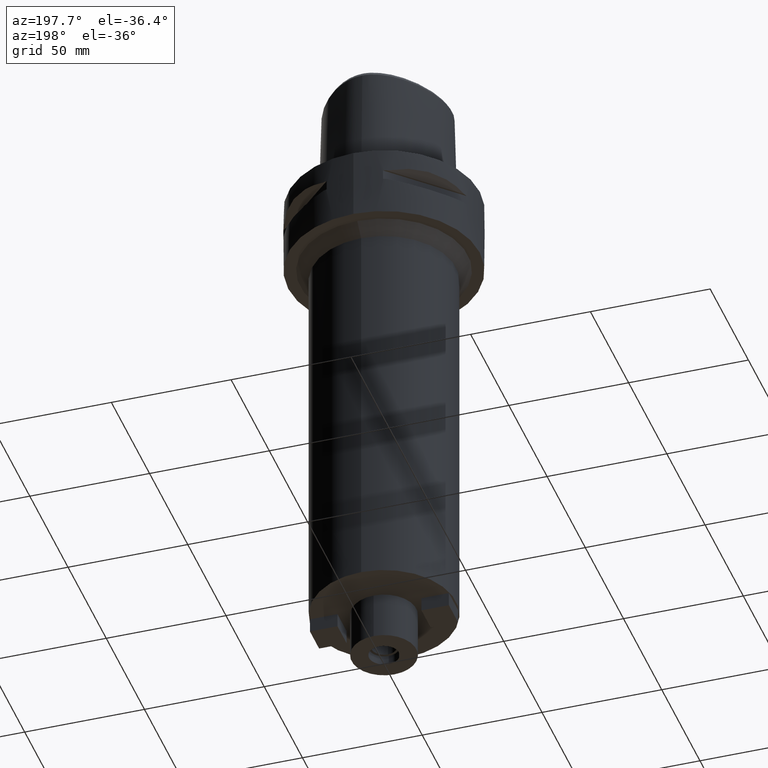
[diagram: clean part render]
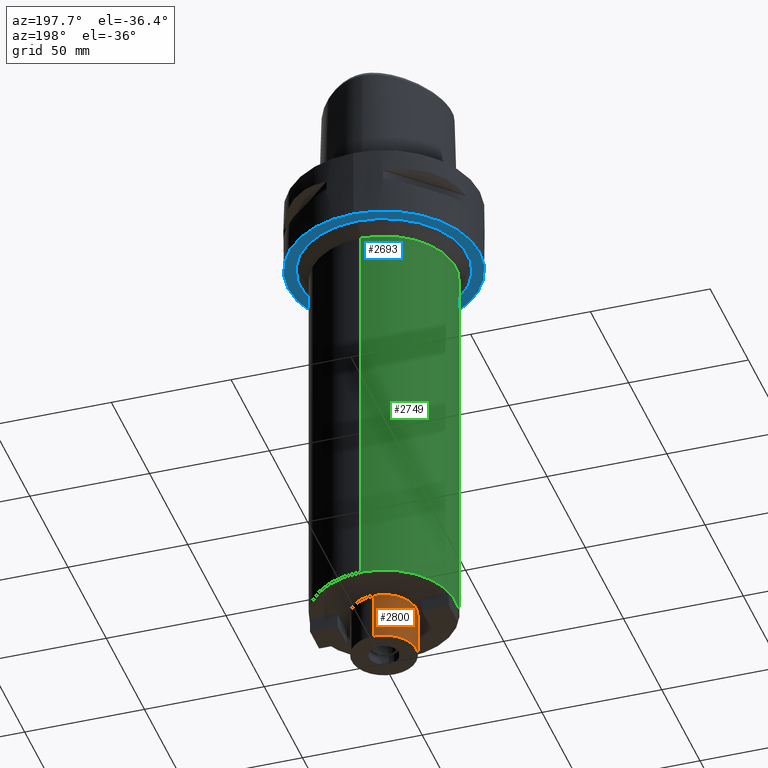
[diagram: same view with three faces highlighted in distinct colors, each labeled with its STEP entity id]
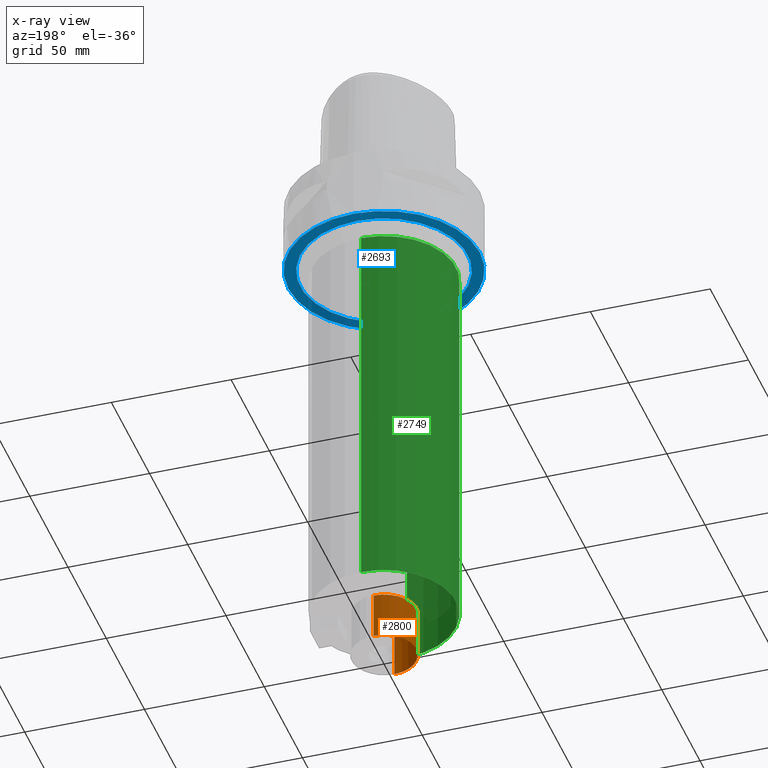
[diagram: x-ray of the same camera — body ghosted, the three highlighted faces saturated]
A machine part, auxiliary view with three faces highlighted in distinct colors.
The next image is the same camera in x-ray (body ghosted, the three faces saturated) — at least one of them is partly hidden behind the body in this view.
Their STEP definitions:

[orange] entity #2800 — the highlighted cylindrical surface (edge-blend (fillet) strip) has radius 13.5 mm, axis along (0, 0, -1).
#569=CARTESIAN_POINT('',(0.E0,1.359357947054E-14,-2.E2));
#570=DIRECTION('',(0.E0,0.E0,-1.E0));
#571=DIRECTION('',(0.E0,-1.E0,0.E0));
#572=AXIS2_PLACEMENT_3D('',#569,#570,#571);
#613=DIRECTION('',(0.E0,0.E0,-1.E0));
#614=VECTOR('',#613,2.E1);
#615=CARTESIAN_POINT('',(0.E0,-1.35E1,-2.E2));
#616=LINE('',#615,#614);
#620=DIRECTION('',(0.E0,0.E0,-1.E0));
#621=VECTOR('',#620,2.E1);
#622=CARTESIAN_POINT('',(0.E0,1.35E1,-2.E2));
#623=LINE('',#622,#621);
#635=CARTESIAN_POINT('',(0.E0,1.359357947054E-14,-2.2E2));
#636=DIRECTION('',(0.E0,0.E0,1.E0));
#637=DIRECTION('',(0.E0,1.E0,0.E0));
#638=AXIS2_PLACEMENT_3D('',#635,#636,#637);
#1720=CARTESIAN_POINT('',(0.E0,-1.35E1,-2.E2));
#1721=CARTESIAN_POINT('',(0.E0,1.35E1,-2.E2));
#1722=VERTEX_POINT('',#1720);
#1723=VERTEX_POINT('',#1721);
#1740=CARTESIAN_POINT('',(0.E0,1.35E1,-2.2E2));
#1741=VERTEX_POINT('',#1740);
#1742=CARTESIAN_POINT('',(0.E0,-1.35E1,-2.2E2));
#1743=VERTEX_POINT('',#1742);
#2786=CARTESIAN_POINT('',(0.E0,1.359357947054E-14,1.1E1));
#2787=DIRECTION('',(0.E0,0.E0,-1.E0));
#2788=DIRECTION('',(0.E0,-1.E0,0.E0));
#2789=AXIS2_PLACEMENT_3D('',#2786,#2787,#2788);
#2790=CYLINDRICAL_SURFACE('',#2789,1.35E1);
#2792=ORIENTED_EDGE('',*,*,#2791,.F.);
#2793=ORIENTED_EDGE('',*,*,#2759,.F.);
#2795=ORIENTED_EDGE('',*,*,#2794,.T.);
#2797=ORIENTED_EDGE('',*,*,#2796,.F.);
#2798=EDGE_LOOP('',(#2792,#2793,#2795,#2797));
#2799=FACE_OUTER_BOUND('',#2798,.F.);
#573=CIRCLE('',#572,1.35E1);
#639=CIRCLE('',#638,1.35E1);
#2759=EDGE_CURVE('',#1722,#1723,#573,.T.);
#2791=EDGE_CURVE('',#1723,#1741,#623,.T.);
#2794=EDGE_CURVE('',#1722,#1743,#616,.T.);
#2796=EDGE_CURVE('',#1741,#1743,#639,.T.);
#2800=ADVANCED_FACE('',(#2799),#2790,.T.);

[blue] entity #2693 — the highlighted planar face has unit normal (0, 0, -1).
#477=CARTESIAN_POINT('',(0.E0,1.359357947054E-14,-3.E1));
#478=DIRECTION('',(0.E0,0.E0,1.E0));
#479=DIRECTION('',(0.E0,-1.E0,0.E0));
#480=AXIS2_PLACEMENT_3D('',#477,#478,#479);
#485=CARTESIAN_POINT('',(0.E0,1.359357947054E-14,-3.E1));
#486=DIRECTION('',(0.E0,0.E0,1.E0));
#487=DIRECTION('',(0.E0,1.E0,0.E0));
#488=AXIS2_PLACEMENT_3D('',#485,#486,#487);
#493=CARTESIAN_POINT('',(0.E0,0.E0,-3.E1));
#494=DIRECTION('',(0.E0,0.E0,-1.E0));
#495=DIRECTION('',(0.E0,-1.E0,0.E0));
#496=AXIS2_PLACEMENT_3D('',#493,#494,#495);
#501=CARTESIAN_POINT('',(0.E0,0.E0,-3.E1));
#502=DIRECTION('',(0.E0,0.E0,-1.E0));
#503=DIRECTION('',(0.E0,1.E0,0.E0));
#504=AXIS2_PLACEMENT_3D('',#501,#502,#503);
#1652=CARTESIAN_POINT('',(0.E0,4.E1,-3.E1));
#1653=VERTEX_POINT('',#1652);
#1654=CARTESIAN_POINT('',(0.E0,-4.E1,-3.E1));
#1655=VERTEX_POINT('',#1654);
#1708=CARTESIAN_POINT('',(0.E0,-3.5E1,-3.E1));
#1709=CARTESIAN_POINT('',(0.E0,3.5E1,-3.E1));
#1710=VERTEX_POINT('',#1708);
#1711=VERTEX_POINT('',#1709);
#2678=CARTESIAN_POINT('',(0.E0,0.E0,-3.E1));
#2679=DIRECTION('',(0.E0,0.E0,-1.E0));
#2680=DIRECTION('',(0.E0,-1.E0,0.E0));
#2681=AXIS2_PLACEMENT_3D('',#2678,#2679,#2680);
#2682=PLANE('',#2681);
#2683=ORIENTED_EDGE('',*,*,#2635,.T.);
#2684=ORIENTED_EDGE('',*,*,#2588,.T.);
#2685=EDGE_LOOP('',(#2683,#2684));
#2686=FACE_OUTER_BOUND('',#2685,.F.);
#2688=ORIENTED_EDGE('',*,*,#2687,.T.);
#2690=ORIENTED_EDGE('',*,*,#2689,.T.);
#2691=EDGE_LOOP('',(#2688,#2690));
#2692=FACE_BOUND('',#2691,.F.);
#481=CIRCLE('',#480,4.E1);
#489=CIRCLE('',#488,4.E1);
#497=CIRCLE('',#496,3.5E1);
#505=CIRCLE('',#504,3.5E1);
#2588=EDGE_CURVE('',#1653,#1655,#489,.T.);
#2635=EDGE_CURVE('',#1655,#1653,#481,.T.);
#2687=EDGE_CURVE('',#1710,#1711,#497,.T.);
#2689=EDGE_CURVE('',#1711,#1710,#505,.T.);
#2693=ADVANCED_FACE('',(#2686,#2692),#2682,.T.);

[green] entity #2749 — the highlighted cylindrical surface (partial cylindrical patch) has radius 30 mm, axis along (0, 0, -1).
#516=CARTESIAN_POINT('',(0.E0,0.E0,-3.5E1));
#517=DIRECTION('',(0.E0,0.E0,-1.E0));
#518=DIRECTION('',(0.E0,-1.E0,0.E0));
#519=AXIS2_PLACEMENT_3D('',#516,#517,#518);
#539=DIRECTION('',(0.E0,0.E0,-1.E0));
#540=VECTOR('',#539,1.65E2);
#541=CARTESIAN_POINT('',(0.E0,3.E1,-3.5E1));
#542=LINE('',#541,#540);
#546=DIRECTION('',(0.E0,0.E0,-1.E0));
#547=VECTOR('',#546,1.65E2);
#548=CARTESIAN_POINT('',(0.E0,-3.E1,-3.5E1));
#549=LINE('',#548,#547);
#561=CARTESIAN_POINT('',(0.E0,1.359357947054E-14,-2.E2));
#562=DIRECTION('',(0.E0,0.E0,1.E0));
#563=DIRECTION('',(0.E0,1.E0,0.E0));
#564=AXIS2_PLACEMENT_3D('',#561,#562,#563);
#1712=CARTESIAN_POINT('',(0.E0,3.E1,-3.5E1));
#1713=VERTEX_POINT('',#1712);
#1714=CARTESIAN_POINT('',(0.E0,-3.E1,-3.5E1));
#1715=VERTEX_POINT('',#1714);
#1716=CARTESIAN_POINT('',(0.E0,3.E1,-2.E2));
#1717=VERTEX_POINT('',#1716);
#1718=CARTESIAN_POINT('',(0.E0,-3.E1,-2.E2));
#1719=VERTEX_POINT('',#1718);
#2737=CARTESIAN_POINT('',(0.E0,1.359357947054E-14,1.1E1));
#2738=DIRECTION('',(0.E0,0.E0,-1.E0));
#2739=DIRECTION('',(0.E0,-1.E0,0.E0));
#2740=AXIS2_PLACEMENT_3D('',#2737,#2738,#2739);
#2741=CYLINDRICAL_SURFACE('',#2740,3.E1);
#2742=ORIENTED_EDGE('',*,*,#2727,.F.);
#2743=ORIENTED_EDGE('',*,*,#2704,.F.);
#2744=ORIENTED_EDGE('',*,*,#2731,.T.);
#2746=ORIENTED_EDGE('',*,*,#2745,.F.);
#2747=EDGE_LOOP('',(#2742,#2743,#2744,#2746));
#2748=FACE_OUTER_BOUND('',#2747,.F.);
#520=CIRCLE('',#519,3.E1);
#565=CIRCLE('',#564,3.E1);
#2704=EDGE_CURVE('',#1715,#1713,#520,.T.);
#2727=EDGE_CURVE('',#1713,#1717,#542,.T.);
#2731=EDGE_CURVE('',#1715,#1719,#549,.T.);
#2745=EDGE_CURVE('',#1717,#1719,#565,.T.);
#2749=ADVANCED_FACE('',(#2748),#2741,.T.);